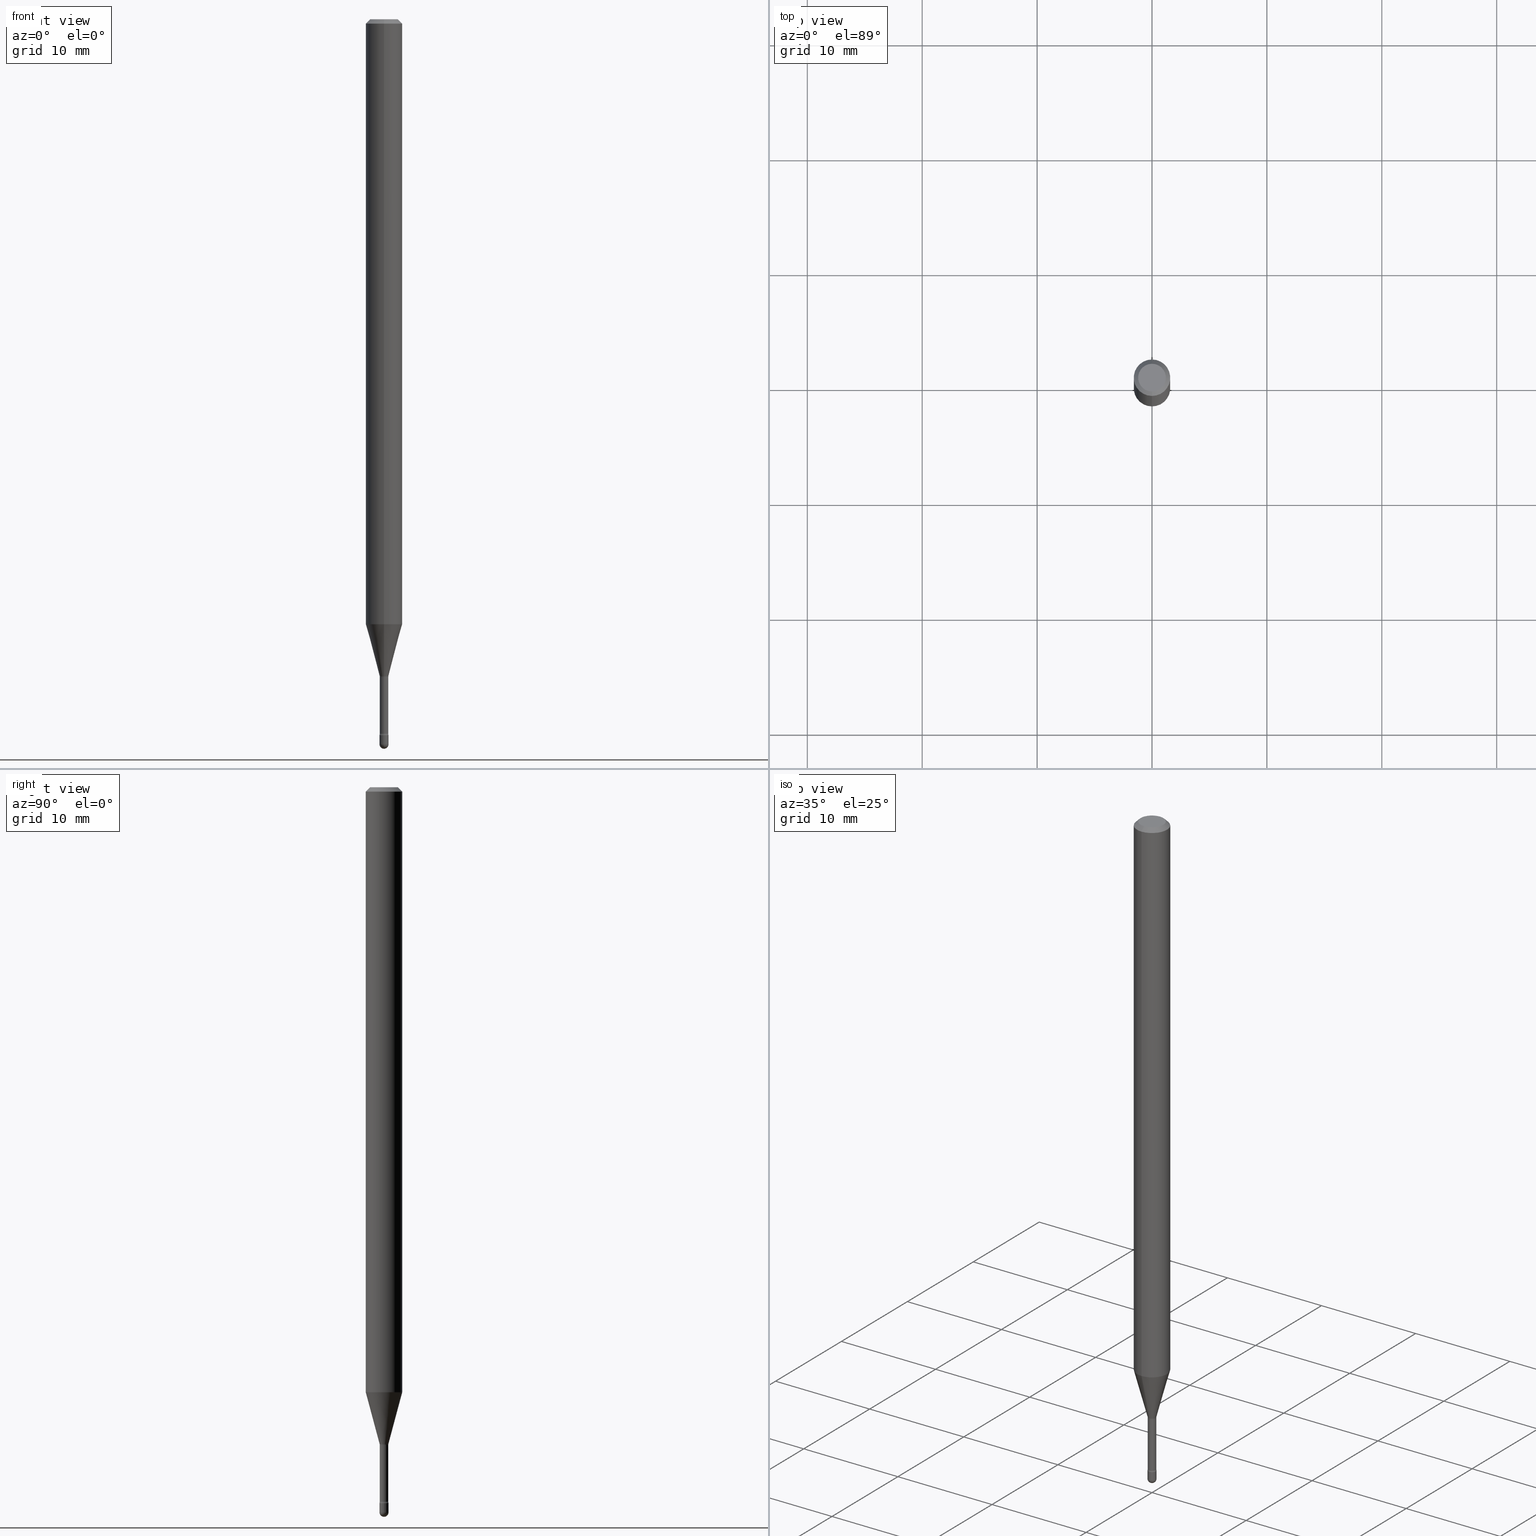
[diagram: canonical four-view strip — front | top / right | iso, engineering-drawing reading convention]
A machine part, canonical four-view strip (front | top / right | iso — engineering-drawing reading convention). The complete STEP part file that produces these views, byte-faithful:
ISO-10303-21;
HEADER;
FILE_DESCRIPTION (( 'STEP AP203' ),
    '1' );
FILE_NAME ('09447.STEP',
    '2024-04-09T23:16:05',
    ( '' ),
    ( '' ),
    'SwSTEP 2.0',
    'SolidWorks 2023',
    '' );
FILE_SCHEMA (( 'CONFIG_CONTROL_DESIGN' ));
ENDSEC;

DATA;
#1 = AXIS2_PLACEMENT_3D ( 'NONE', #10, #53, #522 ) ;
#2 = AXIS2_PLACEMENT_3D ( 'NONE', #152, #189, #322 ) ;
#3 = DIRECTION ( 'NONE',  ( -1.000000000000000000, 6.982962677686265922E-15, -4.883557194083112340E-29 ) ) ;
#4 = ORIENTED_EDGE ( 'NONE', *, *, #555, .F. ) ;
#5 = DIRECTION ( 'NONE',  ( 1.000000000000000000, -6.982962677686238312E-15, 0.000000000000000000 ) ) ;
#6 = CARTESIAN_POINT ( 'NONE',  ( -1.101341240427545269E-16, -0.01550000000000864402, -2.484500000000000153 ) ) ;
#7 = ORIENTED_EDGE ( 'NONE', *, *, #239, .F. ) ;
#8 = FACE_OUTER_BOUND ( 'NONE', #56, .T. ) ;
#9 = AXIS2_PLACEMENT_3D ( 'NONE', #379, #553, #506 ) ;
#10 = CARTESIAN_POINT ( 'NONE',  ( 5.502542296040505557E-29, -7.856139838675041771E-15, -2.250092501787273491 ) ) ;
#11 = ORIENTED_EDGE ( 'NONE', *, *, #186, .T. ) ;
#12 = DIRECTION ( 'NONE',  ( -2.445473815707476510E-29, 3.491474164922030519E-15, 1.000000000000000000 ) ) ;
#13 = ORIENTED_EDGE ( 'NONE', *, *, #145, .F. ) ;
#14 = LINE ( 'NONE', #540, #310 ) ;
#15 = APPROVAL_PERSON_ORGANIZATION ( #368, #61, #504 ) ;
#16 = ORIENTED_EDGE ( 'NONE', *, *, #220, .F. ) ;
#17 = AXIS2_PLACEMENT_3D ( 'NONE', #541, #373, #159 ) ;
#18 =( NAMED_UNIT ( * ) SI_UNIT ( $, .STERADIAN. ) SOLID_ANGLE_UNIT ( ) );
#19 = CALENDAR_DATE ( 2024, 9, 4 ) ;
#20 = DIRECTION ( 'NONE',  ( 4.937700262164548042E-15, 0.7071067811865451302, -0.7071067811865499042 ) ) ;
#21 = CIRCLE ( 'NONE', #228, 0.06250000000000000000 ) ;
#22 = ADVANCED_FACE ( 'NONE', ( #188 ), #435, .T. ) ;
#23 = ORIENTED_EDGE ( 'NONE', *, *, #103, .F. ) ;
#24 = DIRECTION ( 'NONE',  ( -6.982962677686265133E-15, -1.000000000000000000, 0.000000000000000000 ) ) ;
#25 = FACE_OUTER_BOUND ( 'NONE', #420, .T. ) ;
#26 = EDGE_LOOP ( 'NONE', ( #107, #458, #72, #165, #261 ) ) ;
#27 = PERSON_AND_ORGANIZATION ( #557, #564 ) ;
#28 = CARTESIAN_POINT ( 'NONE',  ( -1.169113584055446105E-44, 1.669184350826100908E-30, 4.780733988912460139E-16 ) ) ;
#29 = PERSON_AND_ORGANIZATION_ROLE ( 'creator' ) ;
#30 = DIRECTION ( 'NONE',  ( 1.000000000000000000, -7.105427357601001070E-15, 4.926315420686887018E-29 ) ) ;
#31 = CIRCLE ( 'NONE', #385, 0.01455000000000002472 ) ;
#32 = ORIENTED_EDGE ( 'NONE', *, *, #527, .F. ) ;
#33 = APPROVAL_DATE_TIME ( #552, #277 ) ;
#34 = ADVANCED_FACE ( 'NONE', ( #25 ), #548, .T. ) ;
#35 = DIRECTION ( 'NONE',  ( 1.000000000000000000, -6.982962677686301420E-15, 0.000000000000000000 ) ) ;
#36 = CYLINDRICAL_SURFACE ( 'NONE', #483, 0.01455000000000001084 ) ;
#37 = AXIS2_PLACEMENT_3D ( 'NONE', #550, #337, #505 ) ;
#38 = CARTESIAN_POINT ( 'NONE',  ( 2.099653784171646764E-16, 0.02954999999999212770, -2.253974787463811413 ) ) ;
#39 = LINE ( 'NONE', #389, #274 ) ;
#40 = CIRCLE ( 'NONE', #358, 0.01549999999999999989 ) ;
#41 = CARTESIAN_POINT ( 'NONE',  ( -4.287811248607203282E-16, -0.06250000000000005551, -0.01499999999999986587 ) ) ;
#42 = CARTESIAN_POINT ( 'NONE',  ( 5.502542296040505557E-29, -7.856139838675041771E-15, -2.250092501787273491 ) ) ;
#43 = CC_DESIGN_PERSON_AND_ORGANIZATION_ASSIGNMENT ( #198, #323, ( #167 ) ) ;
#44 = DIRECTION ( 'NONE',  ( -2.445473815707476510E-29, 3.491474164922030519E-15, 1.000000000000000000 ) ) ;
#45 = AXIS2_PLACEMENT_3D ( 'NONE', #195, #163, #236 ) ;
#46 = DIRECTION ( 'NONE',  ( -6.982962677686265922E-15, -1.000000000000000000, 3.491474164922031308E-15 ) ) ;
#47 = ORIENTED_EDGE ( 'NONE', *, *, #517, .T. ) ;
#48 = AXIS2_PLACEMENT_3D ( 'NONE', #259, #101, #266 ) ;
#49 = EDGE_CURVE ( 'NONE', #122, #248, #370, .T. ) ;
#50 = CARTESIAN_POINT ( 'NONE',  ( 5.512025032670523361E-29, -7.869710908652842186E-15, -2.253974787463811413 ) ) ;
#51 = EDGE_LOOP ( 'NONE', ( #405, #47, #74, #496 ) ) ;
#52 = CARTESIAN_POINT ( 'NONE',  ( 6.075767248966972494E-29, -8.674585386355795965E-15, -2.484500000000000153 ) ) ;
#53 = DIRECTION ( 'NONE',  ( -2.445473815707476510E-29, 3.491474164922030519E-15, 1.000000000000000000 ) ) ;
#54 = ORIENTED_EDGE ( 'NONE', *, *, #399, .T. ) ;
#55 = DIRECTION ( 'NONE',  ( -2.445473815707476510E-29, 3.491474164922030519E-15, 1.000000000000000000 ) ) ;
#56 = EDGE_LOOP ( 'NONE', ( #140, #125, #76, #478 ) ) ;
#57 = EDGE_CURVE ( 'NONE', #523, #296, #529, .T. ) ;
#58 = CONICAL_SURFACE ( 'NONE', #1, 0.01506111260566397880, 0.2617993877991499074 ) ;
#59 = ORIENTED_EDGE ( 'NONE', *, *, #232, .F. ) ;
#60 = LINE ( 'NONE', #487, #284 ) ;
#61 = APPROVAL ( #328, 'UNSPECIFIED' ) ;
#62 = DATE_AND_TIME ( #286, #388 ) ;
#63 = ORIENTED_EDGE ( 'NONE', *, *, #291, .F. ) ;
#64 = DIRECTION ( 'NONE',  ( -2.445473815707476510E-29, 3.491474164922030519E-15, 1.000000000000000000 ) ) ;
#65 = ADVANCED_FACE ( 'NONE', ( #329 ), #498, .T. ) ;
#66 = ORIENTED_EDGE ( 'NONE', *, *, #161, .T. ) ;
#67 = DIRECTION ( 'NONE',  ( 0.000000000000000000, 0.000000000000000000, 1.000000000000000000 ) ) ;
#68 = AXIS2_PLACEMENT_3D ( 'NONE', #210, #347, #300 ) ;
#69 = ORIENTED_EDGE ( 'NONE', *, *, #510, .F. ) ;
#70 = PERSON_AND_ORGANIZATION_ROLE ( 'design_supplier' ) ;
#71 = VERTEX_POINT ( 'NONE', #282 ) ;
#72 = ORIENTED_EDGE ( 'NONE', *, *, #281, .F. ) ;
#73 = APPROVAL_ROLE ( '' ) ;
#74 = ORIENTED_EDGE ( 'NONE', *, *, #510, .T. ) ;
#75 = ADVANCED_FACE ( 'NONE', ( #454 ), #558, .T. ) ;
#76 = ORIENTED_EDGE ( 'NONE', *, *, #476, .F. ) ;
#77 = DIRECTION ( 'NONE',  ( -2.445468806185136597E-29, 3.491481338843145583E-15, 1.000000000000000000 ) ) ;
#78 = CIRCLE ( 'NONE', #427, 0.01454999999999999870 ) ;
#79 = ORIENTED_EDGE ( 'NONE', *, *, #383, .F. ) ;
#80 = FACE_OUTER_BOUND ( 'NONE', #276, .T. ) ;
#81 = ORIENTED_EDGE ( 'NONE', *, *, #272, .F. ) ;
#82 = CC_DESIGN_SECURITY_CLASSIFICATION ( #486, ( #469 ) ) ;
#83 = DIRECTION ( 'NONE',  ( -2.445473815707476510E-29, 3.491474164922030519E-15, 1.000000000000000000 ) ) ;
#84 = EDGE_CURVE ( 'NONE', #424, #226, #187, .T. ) ;
#85 = LINE ( 'NONE', #41, #271 ) ;
#86 = DIRECTION ( 'NONE',  ( -2.445473815707476510E-29, 3.491474164922030519E-15, 1.000000000000000000 ) ) ;
#87 = CARTESIAN_POINT ( 'NONE',  ( 3.668210723561235154E-31, -5.237211247383074400E-17, -0.01500000000000008271 ) ) ;
#88 = CIRCLE ( 'NONE', #160, 0.01500000000000001159 ) ;
#89 = CC_DESIGN_PERSON_AND_ORGANIZATION_ASSIGNMENT ( #233, #70, ( #469 ) ) ;
#90 = CARTESIAN_POINT ( 'NONE',  ( -1.016021069602754739E-16, -0.01455000000000856997, -2.447746667724196357 ) ) ;
#91 = TOROIDAL_SURFACE ( 'NONE', #303, 0.02955000000000003804, 0.01500000000000001506 ) ;
#92 = CYLINDRICAL_SURFACE ( 'NONE', #351, 0.01549999999999999989 ) ;
#93 = LOCAL_TIME ( 19, 16, 5.000000000000000000, #283 ) ;
#94 = APPROVAL_PERSON_ORGANIZATION ( #330, #130, #112 ) ;
#95 = DIRECTION ( 'NONE',  ( -2.445473815707476510E-29, 3.491474164922030519E-15, 1.000000000000000000 ) ) ;
#96 = EDGE_CURVE ( 'NONE', #122, #438, #88, .T. ) ;
#97 = DIRECTION ( 'NONE',  ( -6.982962677686266711E-15, -1.000000000000000000, 0.000000000000000000 ) ) ;
#98 = VERTEX_POINT ( 'NONE', #90 ) ;
#99 = CIRCLE ( 'NONE', #345, 0.01506111260566397880 ) ;
#100 = AXIS2_PLACEMENT_3D ( 'NONE', #528, #3, #97 ) ;
#101 = DIRECTION ( 'NONE',  ( -2.445473815707476510E-29, 3.491474164922030519E-15, 1.000000000000000000 ) ) ;
#102 = CARTESIAN_POINT ( 'NONE',  ( 6.114334769336955252E-29, -8.727754245838525120E-15, -2.500000000000000000 ) ) ;
#103 = EDGE_CURVE ( 'NONE', #226, #424, #453, .T. ) ;
#104 = CARTESIAN_POINT ( 'NONE',  ( 5.512036324007575479E-29, -7.869694738815522416E-15, -2.253974787463811413 ) ) ;
#105 = EDGE_LOOP ( 'NONE', ( #395, #109, #150, #59 ) ) ;
#106 = AXIS2_PLACEMENT_3D ( 'NONE', #535, #149, #316 ) ;
#107 = ORIENTED_EDGE ( 'NONE', *, *, #57, .T. ) ;
#108 = UNCERTAINTY_MEASURE_WITH_UNIT (LENGTH_MEASURE( 1.000000000000000082E-05 ), #546, 'distance_accuracy_value', 'NONE');
#109 = ORIENTED_EDGE ( 'NONE', *, *, #96, .T. ) ;
#110 = CC_DESIGN_PERSON_AND_ORGANIZATION_ASSIGNMENT ( #331, #500, ( #486 ) ) ;
#111 = DIRECTION ( 'NONE',  ( -2.445473815707476510E-29, 3.491474164922030519E-15, 1.000000000000000000 ) ) ;
#112 = APPROVAL_ROLE ( '' ) ;
#113 = SECURITY_CLASSIFICATION_LEVEL ( 'unclassified' ) ;
#114 = AXIS2_PLACEMENT_3D ( 'NONE', #213, #348, #518 ) ;
#115 = ORIENTED_EDGE ( 'NONE', *, *, #103, .T. ) ;
#116 = VERTEX_POINT ( 'NONE', #253 ) ;
#117 = APPROVAL_DATE_TIME ( #336, #130 ) ;
#118 = EDGE_CURVE ( 'NONE', #438, #411, #549, .T. ) ;
#119 = CARTESIAN_POINT ( 'NONE',  ( 2.023589285005646150E-45, -2.889068848000358283E-31, -8.274737283279840754E-17 ) ) ;
#120 = FACE_OUTER_BOUND ( 'NONE', #51, .T. ) ;
#121 = CC_DESIGN_APPROVAL ( #130, ( #167 ) ) ;
#122 = VERTEX_POINT ( 'NONE', #475 ) ;
#123 = LINE ( 'NONE', #247, #134 ) ;
#124 = PRODUCT_RELATED_PRODUCT_CATEGORY ( 'detail', '', ( #131 ) ) ;
#125 = ORIENTED_EDGE ( 'NONE', *, *, #457, .T. ) ;
#126 = AXIS2_PLACEMENT_3D ( 'NONE', #28, #111, #244 ) ;
#127 = LINE ( 'NONE', #421, #245 ) ;
#128 = CIRCLE ( 'NONE', #419, 0.01549999999999999989 ) ;
#129 = ORIENTED_EDGE ( 'NONE', *, *, #326, .T. ) ;
#130 = APPROVAL ( #499, 'UNSPECIFIED' ) ;
#131 = PRODUCT ( '09447', '09447', '', ( #327 ) ) ;
#132 = CARTESIAN_POINT ( 'NONE',  ( 6.075767248966972494E-29, -8.674585386355795965E-15, -2.484500000000000153 ) ) ;
#133 = DIRECTION ( 'NONE',  ( -2.445473815707476510E-29, 3.491474164922030519E-15, 1.000000000000000000 ) ) ;
#134 = VECTOR ( 'NONE', #251, 39.37007874015748854 ) ;
#135 = CARTESIAN_POINT ( 'NONE',  ( 1.033839680531544719E-16, 0.01454999999999212652, -2.253974787463811413 ) ) ;
#136 = CIRCLE ( 'NONE', #162, 0.01455000000000002472 ) ;
#137 = DIRECTION ( 'NONE',  ( -6.982962677686265133E-15, -1.000000000000000000, 0.000000000000000000 ) ) ;
#138 = ADVANCED_FACE ( 'NONE', ( #471 ), #255, .T. ) ;
#139 = CARTESIAN_POINT ( 'NONE',  ( 6.075767248966972494E-29, -8.674585386355795965E-15, -2.484500000000000153 ) ) ;
#140 = ORIENTED_EDGE ( 'NONE', *, *, #415, .T. ) ;
#141 = MANIFOLD_SOLID_BREP ( 'Body-Move/Copy2[2]', #309 ) ;
#142 = DIRECTION ( 'NONE',  ( -6.982962677686265922E-15, -1.000000000000000000, 3.491474164922030519E-15 ) ) ;
#143 = AXIS2_PLACEMENT_3D ( 'NONE', #119, #288, #459 ) ;
#144 = CIRCLE ( 'NONE', #493, 0.01549999999999999989 ) ;
#145 = EDGE_CURVE ( 'NONE', #404, #464, #492, .T. ) ;
#146 = FACE_OUTER_BOUND ( 'NONE', #240, .T. ) ;
#147 = EDGE_LOOP ( 'NONE', ( #54, #246, #460, #69 ) ) ;
#148 = DIRECTION ( 'NONE',  ( -2.445473815707476510E-29, 3.491474164922030519E-15, 1.000000000000000000 ) ) ;
#149 = DIRECTION ( 'NONE',  ( 1.000000000000000000, -6.982962677686265922E-15, 4.883557194083112340E-29 ) ) ;
#150 = ORIENTED_EDGE ( 'NONE', *, *, #118, .T. ) ;
#151 = EDGE_LOOP ( 'NONE', ( #206, #285, #223, #13 ) ) ;
#152 = CARTESIAN_POINT ( 'NONE',  ( 5.998747269930439159E-29, -8.564586126553740940E-15, -2.452999999999999847 ) ) ;
#153 = AXIS2_PLACEMENT_3D ( 'NONE', #357, #314, #531 ) ;
#154 = ORIENTED_EDGE ( 'NONE', *, *, #545, .T. ) ;
#155 = PERSON_AND_ORGANIZATION ( #557, #564 ) ;
#156 = ORIENTED_EDGE ( 'NONE', *, *, #257, .F. ) ;
#157 = APPLICATION_PROTOCOL_DEFINITION ( 'international standard', 'config_control_design', 1994, #298 ) ;
#158 = DATE_AND_TIME ( #547, #172 ) ;
#159 = DIRECTION ( 'NONE',  ( 1.000000000000000000, -6.982962677686266711E-15, 4.876176775795935232E-29 ) ) ;
#160 = AXIS2_PLACEMENT_3D ( 'NONE', #418, #30, #364 ) ;
#161 = EDGE_CURVE ( 'NONE', #116, #366, #123, .T. ) ;
#162 = AXIS2_PLACEMENT_3D ( 'NONE', #391, #566, #137 ) ;
#163 = DIRECTION ( 'NONE',  ( -2.445468806185136597E-29, 3.491481338843145583E-15, 1.000000000000000000 ) ) ;
#164 = CARTESIAN_POINT ( 'NONE',  ( -1.016021069602800345E-16, -0.01455000000000786740, -2.253974787463811413 ) ) ;
#165 = ORIENTED_EDGE ( 'NONE', *, *, #200, .F. ) ;
#166 = DIRECTION ( 'NONE',  ( -2.445473815707476510E-29, 3.491474164922030519E-15, 1.000000000000000000 ) ) ;
#167 = PRODUCT_DEFINITION ( 'UNKNOWN', '', #469, #497 ) ;
#168 = DIRECTION ( 'NONE',  ( -2.445468806185136877E-29, 3.491481338843145188E-15, 1.000000000000000000 ) ) ;
#169 = AXIS2_PLACEMENT_3D ( 'NONE', #87, #83, #344 ) ;
#170 = DIRECTION ( 'NONE',  ( -2.445473815707476230E-29, 3.491474164922030519E-15, 1.000000000000000000 ) ) ;
#171 = DIRECTION ( 'NONE',  ( 7.105427357601001859E-15, 1.000000000000000000, 0.000000000000000000 ) ) ;
#172 = LOCAL_TIME ( 19, 16, 5.000000000000000000, #416 ) ;
#173 = ADVANCED_FACE ( 'NONE', ( #80 ), #390, .F. ) ;
#174 = DIRECTION ( 'NONE',  ( 1.000000000000000000, -6.982962677686301420E-15, 0.000000000000000000 ) ) ;
#175 = ORIENTED_EDGE ( 'NONE', *, *, #415, .F. ) ;
#176 = TOROIDAL_SURFACE ( 'NONE', #403, 0.02954999999999999988, 0.01500000000000002720 ) ;
#177 = ORIENTED_EDGE ( 'NONE', *, *, #281, .T. ) ;
#178 = DIRECTION ( 'NONE',  ( -2.445473815707476510E-29, 3.491474164922030519E-15, 1.000000000000000000 ) ) ;
#179 = EDGE_CURVE ( 'NONE', #116, #248, #519, .T. ) ;
#180 = PLANE ( 'NONE',  #153 ) ;
#181 = ORIENTED_EDGE ( 'NONE', *, *, #393, .T. ) ;
#182 = AXIS2_PLACEMENT_3D ( 'NONE', #503, #554, #295 ) ;
#183 = FACE_OUTER_BOUND ( 'NONE', #434, .T. ) ;
#184 = EDGE_LOOP ( 'NONE', ( #79, #451, #32, #359 ) ) ;
#185 = DIRECTION ( 'NONE',  ( -6.982962677686265922E-15, -1.000000000000000000, 3.491474164922030519E-15 ) ) ;
#186 = EDGE_CURVE ( 'NONE', #424, #464, #85, .T. ) ;
#187 = CIRCLE ( 'NONE', #143, 0.04749999999999999362 ) ;
#188 = FACE_OUTER_BOUND ( 'NONE', #338, .T. ) ;
#189 = DIRECTION ( 'NONE',  ( -2.445473815707476510E-29, 3.491474164922030519E-15, 1.000000000000000000 ) ) ;
#190 = APPLICATION_CONTEXT ( 'configuration controlled 3d designs of mechanical parts and assemblies' ) ;
#191 = DATE_AND_TIME ( #19, #214 ) ;
#192 = CIRCLE ( 'NONE', #511, 0.01506111260566397880 ) ;
#193 = CARTESIAN_POINT ( 'NONE',  ( 4.364351673553919652E-16, 0.06249999999999995143, -0.01500000000000030129 ) ) ;
#194 = CC_DESIGN_PERSON_AND_ORGANIZATION_ASSIGNMENT ( #287, #29, ( #469 ) ) ;
#195 = CARTESIAN_POINT ( 'NONE',  ( 6.075767248966972494E-29, -8.674585386355795965E-15, -2.484500000000000153 ) ) ;
#196 = CARTESIAN_POINT ( 'NONE',  ( 6.075767248966972494E-29, -8.674585386355795965E-15, -2.484500000000000153 ) ) ;
#197 = PERSON_AND_ORGANIZATION_ROLE ( 'design_owner' ) ;
#198 = PERSON_AND_ORGANIZATION ( #557, #564 ) ;
#199 = EDGE_LOOP ( 'NONE', ( #252, #11, #543, #4 ) ) ;
#200 = EDGE_CURVE ( 'NONE', #537, #551, #559, .T. ) ;
#201 = ORIENTED_EDGE ( 'NONE', *, *, #96, .F. ) ;
#202 = COORDINATED_UNIVERSAL_TIME_OFFSET ( 5, 0, .BEHIND. ) ;
#203 = ORIENTED_EDGE ( 'NONE', *, *, #407, .T. ) ;
#204 = VECTOR ( 'NONE', #20, 39.37007874015748143 ) ;
#205 = DIRECTION ( 'NONE',  ( 1.000000000000000000, -6.982962677686266711E-15, 4.876176775795935232E-29 ) ) ;
#206 = ORIENTED_EDGE ( 'NONE', *, *, #457, .F. ) ;
#207 = CARTESIAN_POINT ( 'NONE',  ( -4.364351673553912750E-16, -0.06250000000000005551, -0.01499999999999986587 ) ) ;
#208 = CARTESIAN_POINT ( 'NONE',  ( 2.023589285005646150E-45, -2.889068848000358283E-31, -8.274737283279840754E-17 ) ) ;
#209 = ADVANCED_FACE ( 'NONE', ( #346 ), #556, .T. ) ;
#210 = CARTESIAN_POINT ( 'NONE',  ( -2.063465471255695831E-16, -0.02955000000000858329, -2.447746667724196357 ) ) ;
#211 = CARTESIAN_POINT ( 'NONE',  ( -1.169113584055446105E-44, 1.669184350826100908E-30, 4.780733988912460139E-16 ) ) ;
#212 = DIRECTION ( 'NONE',  ( -6.982962677686265922E-15, -1.000000000000000000, 4.370956789862821150E-15 ) ) ;
#213 = CARTESIAN_POINT ( 'NONE',  ( 5.069585003217296339E-29, -7.237994106466703788E-15, -2.073048163777072794 ) ) ;
#214 = LOCAL_TIME ( 19, 16, 5.000000000000000000, #235 ) ;
#215 = DIRECTION ( 'NONE',  ( -6.982962677686266711E-15, -1.000000000000000000, 0.000000000000000000 ) ) ;
#216 = CC_DESIGN_DATE_AND_TIME_ASSIGNMENT ( #62, #413, ( #486 ) ) ;
#217 = VERTEX_POINT ( 'NONE', #164 ) ;
#218 = CIRCLE ( 'NONE', #473, 0.01549999999999993744 ) ;
#219 = ADVANCED_BREP_SHAPE_REPRESENTATION ( '09447', ( #325, #141, #513 ), #534 ) ;
#220 = EDGE_CURVE ( 'NONE', #296, #264, #127, .T. ) ;
#221 = DIRECTION ( 'NONE',  ( 6.982962677686265922E-15, 1.000000000000000000, 0.000000000000000000 ) ) ;
#222 = CARTESIAN_POINT ( 'NONE',  ( 5.512025032670523361E-29, -7.869710908652842186E-15, -2.253974787463811413 ) ) ;
#223 = ORIENTED_EDGE ( 'NONE', *, *, #440, .T. ) ;
#224 = DIRECTION ( 'NONE',  ( -6.982962677686265922E-15, -1.000000000000000000, 0.000000000000000000 ) ) ;
#225 = AXIS2_PLACEMENT_3D ( 'NONE', #132, #468, #426 ) ;
#226 = VERTEX_POINT ( 'NONE', #340 ) ;
#227 = CARTESIAN_POINT ( 'NONE',  ( 5.985888121363136129E-29, -8.546261812574526278E-15, -2.447746667724196357 ) ) ;
#228 = AXIS2_PLACEMENT_3D ( 'NONE', #509, #516, #212 ) ;
#229 = ORIENTED_EDGE ( 'NONE', *, *, #407, .F. ) ;
#230 = DIRECTION ( 'NONE',  ( 1.000000000000000000, -6.982962677686301420E-15, 0.000000000000000000 ) ) ;
#231 = CARTESIAN_POINT ( 'NONE',  ( 0.000000000000000000, 0.000000000000000000, 0.000000000000000000 ) ) ;
#232 = EDGE_CURVE ( 'NONE', #98, #411, #461, .T. ) ;
#233 = PERSON_AND_ORGANIZATION ( #557, #564 ) ;
#234 = ORIENTED_EDGE ( 'NONE', *, *, #186, .F. ) ;
#235 = COORDINATED_UNIVERSAL_TIME_OFFSET ( 5, 0, .BEHIND. ) ;
#236 = DIRECTION ( 'NONE',  ( 1.000000000000000000, -6.982962677686301420E-15, 0.000000000000000000 ) ) ;
#237 = AXIS2_PLACEMENT_3D ( 'NONE', #396, #488, #5 ) ;
#238 = APPROVAL_PERSON_ORGANIZATION ( #27, #277, #73 ) ;
#239 = EDGE_CURVE ( 'NONE', #366, #71, #560, .T. ) ;
#240 = EDGE_LOOP ( 'NONE', ( #311, #307, #129, #318 ) ) ;
#241 = ORIENTED_EDGE ( 'NONE', *, *, #145, .T. ) ;
#242 = DIRECTION ( 'NONE',  ( 6.982962677686265922E-15, 1.000000000000000000, -3.483106191921935554E-15 ) ) ;
#243 = COORDINATED_UNIVERSAL_TIME_OFFSET ( 5, 0, .BEHIND. ) ;
#244 = DIRECTION ( 'NONE',  ( -6.982962677686265922E-15, -1.000000000000000000, 3.491474164922031308E-15 ) ) ;
#245 = VECTOR ( 'NONE', #561, 39.37007874015748143 ) ;
#246 = ORIENTED_EDGE ( 'NONE', *, *, #49, .T. ) ;
#247 = CARTESIAN_POINT ( 'NONE',  ( 1.070156415442491432E-16, 0.01506111260565612224, -2.250092501787273491 ) ) ;
#248 = VERTEX_POINT ( 'NONE', #135 ) ;
#249 = PRODUCT_DEFINITION_SHAPE ( 'NONE', 'NONE',  #167 ) ;
#250 = ADVANCED_FACE ( 'NONE', ( #302 ), #92, .T. ) ;
#251 = DIRECTION ( 'NONE',  ( 1.839019923739597554E-15, 0.2588190451025245697, 0.9659258262890670910 ) ) ;
#252 = ORIENTED_EDGE ( 'NONE', *, *, #84, .F. ) ;
#253 = CARTESIAN_POINT ( 'NONE',  ( 2.755524256971814314E-16, 0.01506111260565612397, -2.250092501787273491 ) ) ;
#254 = AXIS2_PLACEMENT_3D ( 'NONE', #334, #375, #242 ) ;
#255 = SPHERICAL_SURFACE ( 'NONE', #225, 0.01549999999999993744 ) ;
#256 = TOROIDAL_SURFACE ( 'NONE', #335, 0.02954999999999999988, 0.01500000000000002720 ) ;
#257 = EDGE_CURVE ( 'NONE', #264, #551, #502, .T. ) ;
#258 = CARTESIAN_POINT ( 'NONE',  ( 0.000000000000000000, 0.000000000000000000, 0.000000000000000000 ) ) ;
#259 = CARTESIAN_POINT ( 'NONE',  ( 5.985888121363136129E-29, -8.546261812574526278E-15, -2.447746667724196357 ) ) ;
#260 = DIRECTION ( 'NONE',  ( -2.445473815707476510E-29, 3.491474164922030519E-15, 1.000000000000000000 ) ) ;
#261 = ORIENTED_EDGE ( 'NONE', *, *, #299, .T. ) ;
#262 = CC_DESIGN_PERSON_AND_ORGANIZATION_ASSIGNMENT ( #155, #197, ( #131 ) ) ;
#263 = DIRECTION ( 'NONE',  ( -6.982962677686266711E-15, -1.000000000000000000, 0.000000000000000000 ) ) ;
#264 = VERTEX_POINT ( 'NONE', #290 ) ;
#265 = CIRCLE ( 'NONE', #237, 0.01549999999999999989 ) ;
#266 = DIRECTION ( 'NONE',  ( -6.982962677686265922E-15, -1.000000000000000000, 3.491474164922030519E-15 ) ) ;
#267 = DIRECTION ( 'NONE',  ( -7.105427357601001070E-15, -1.000000000000000000, 0.000000000000000000 ) ) ;
#268 = EDGE_LOOP ( 'NONE', ( #203, #66, #175, #278 ) ) ;
#269 = LINE ( 'NONE', #536, #445 ) ;
#270 = DIRECTION ( 'NONE',  ( -2.445473815707476510E-29, 3.491474164922030519E-15, 1.000000000000000000 ) ) ;
#271 = VECTOR ( 'NONE', #423, 39.37007874015748143 ) ;
#272 = EDGE_CURVE ( 'NONE', #362, #537, #128, .T. ) ;
#273 = DIRECTION ( 'NONE',  ( -1.000000000000000000, 6.982962677686265922E-15, -4.883557194083112901E-29 ) ) ;
#274 = VECTOR ( 'NONE', #525, 39.37007874015748143 ) ;
#275 = CALENDAR_DATE ( 2024, 9, 4 ) ;
#276 = EDGE_LOOP ( 'NONE', ( #289, #494 ) ) ;
#277 = APPROVAL ( #374, 'UNSPECIFIED' ) ;
#278 = ORIENTED_EDGE ( 'NONE', *, *, #545, .F. ) ;
#279 = DIRECTION ( 'NONE',  ( -6.982962677686266711E-15, -1.000000000000000000, 3.491474164922029336E-15 ) ) ;
#280 = APPLICATION_PROTOCOL_DEFINITION ( 'international standard', 'config_control_design', 1994, #190 ) ;
#281 = EDGE_CURVE ( 'NONE', #551, #264, #265, .T. ) ;
#282 = CARTESIAN_POINT ( 'NONE',  ( -4.364351673553409851E-16, -0.06250000000000724421, -2.073048163777072794 ) ) ;
#283 = COORDINATED_UNIVERSAL_TIME_OFFSET ( 5, 0, .BEHIND. ) ;
#284 = VECTOR ( 'NONE', #64, 39.37007874015748143 ) ;
#285 = ORIENTED_EDGE ( 'NONE', *, *, #239, .T. ) ;
#286 = CALENDAR_DATE ( 2024, 9, 4 ) ;
#287 = PERSON_AND_ORGANIZATION ( #557, #564 ) ;
#288 = DIRECTION ( 'NONE',  ( -2.445473815707476510E-29, 3.491474164922030519E-15, 1.000000000000000000 ) ) ;
#289 = ORIENTED_EDGE ( 'NONE', *, *, #563, .F. ) ;
#290 = CARTESIAN_POINT ( 'NONE',  ( -0.01549999999999999989, -8.509460431226201399E-15, -2.452999999999999847 ) ) ;
#291 = EDGE_CURVE ( 'NONE', #320, #362, #218, .T. ) ;
#292 = ORIENTED_EDGE ( 'NONE', *, *, #200, .T. ) ;
#293 = CONICAL_SURFACE ( 'NONE', #367, 0.01506111260566397880, 0.2617993877991499074 ) ;
#294 = DIRECTION ( 'NONE',  ( -6.982962677686265922E-15, -1.000000000000000000, 3.483106191921935554E-15 ) ) ;
#295 = DIRECTION ( 'NONE',  ( 1.000000000000000000, -6.982962677686265922E-15, 4.876176775795935793E-29 ) ) ;
#296 = VERTEX_POINT ( 'NONE', #524 ) ;
#297 = DIRECTION ( 'NONE',  ( 1.000000000000000000, -7.105427357601001070E-15, 4.926315420686887018E-29 ) ) ;
#298 = APPLICATION_CONTEXT ( 'configuration controlled 3d designs of mechanical parts and assemblies' ) ;
#299 = EDGE_CURVE ( 'NONE', #537, #523, #144, .T. ) ;
#300 = DIRECTION ( 'NONE',  ( -6.982962677686268288E-15, -1.000000000000000000, 0.000000000000000000 ) ) ;
#301 = AXIS2_PLACEMENT_3D ( 'NONE', #565, #512, #294 ) ;
#302 = FACE_OUTER_BOUND ( 'NONE', #26, .T. ) ;
#303 = AXIS2_PLACEMENT_3D ( 'NONE', #227, #12, #185 ) ;
#304 = CARTESIAN_POINT ( 'NONE',  ( 4.440892098501135963E-16, 0.06249999999999995143, -0.01500000000000030129 ) ) ;
#305 = DIMENSIONAL_EXPONENTS ( 1.000000000000000000, 0.000000000000000000, 0.000000000000000000, 0.000000000000000000, 0.000000000000000000, 0.000000000000000000, 0.000000000000000000 ) ;
#306 = DIRECTION ( 'NONE',  ( -2.445468806185136597E-29, 3.491481338843145583E-15, 1.000000000000000000 ) ) ;
#307 = ORIENTED_EDGE ( 'NONE', *, *, #179, .T. ) ;
#308 = EDGE_CURVE ( 'NONE', #443, #217, #394, .T. ) ;
#309 = CLOSED_SHELL ( 'NONE', ( #317, #209, #339, #75, #450, #378, #353, #65, #22, #365, #173, #538, #495, #360 ) ) ;
#310 = VECTOR ( 'NONE', #148, 39.37007874015748143 ) ;
#311 = ORIENTED_EDGE ( 'NONE', *, *, #422, .F. ) ;
#312 = CARTESIAN_POINT ( 'NONE',  ( 0.01549999999999999989, -8.727830476773153796E-15, -2.484500000000000153 ) ) ;
#313 = CARTESIAN_POINT ( 'NONE',  ( -1.051711872097266853E-16, -0.01506111260567183537, -2.250092501787273491 ) ) ;
#314 = DIRECTION ( 'NONE',  ( 2.445473815707476230E-29, -3.491474164922030519E-15, -1.000000000000000000 ) ) ;
#315 = DIRECTION ( 'NONE',  ( -2.445473815707476510E-29, 3.491474164922030519E-15, 1.000000000000000000 ) ) ;
#316 = DIRECTION ( 'NONE',  ( 6.982962677686265922E-15, 1.000000000000000000, 0.000000000000000000 ) ) ;
#317 = ADVANCED_FACE ( 'NONE', ( #146 ), #256, .F. ) ;
#318 = ORIENTED_EDGE ( 'NONE', *, *, #308, .F. ) ;
#319 = AXIS2_PLACEMENT_3D ( 'NONE', #211, #166, #386 ) ;
#320 = VERTEX_POINT ( 'NONE', #102 ) ;
#321 = CARTESIAN_POINT ( 'NONE',  ( 1.082359215041976490E-16, 0.01549999999999129678, -2.484500000000000153 ) ) ;
#322 = DIRECTION ( 'NONE',  ( -6.982962677686265922E-15, -1.000000000000000000, 0.000000000000000000 ) ) ;
#323 = PERSON_AND_ORGANIZATION_ROLE ( 'creator' ) ;
#324 = EDGE_LOOP ( 'NONE', ( #177, #384 ) ) ;
#325 = MANIFOLD_SOLID_BREP ( 'Body-Move/Copy2[1]', #481 ) ;
#326 = EDGE_CURVE ( 'NONE', #248, #217, #78, .T. ) ;
#327 = MECHANICAL_CONTEXT ( 'NONE', #190, 'mechanical' ) ;
#328 = APPROVAL_STATUS ( 'not_yet_approved' ) ;
#329 = FACE_OUTER_BOUND ( 'NONE', #151, .T. ) ;
#330 = PERSON_AND_ORGANIZATION ( #557, #564 ) ;
#331 = PERSON_AND_ORGANIZATION ( #557, #564 ) ;
#332 = LOCAL_TIME ( 19, 16, 5.000000000000000000, #243 ) ;
#333 = VECTOR ( 'NONE', #414, 39.37007874015748143 ) ;
#334 = CARTESIAN_POINT ( 'NONE',  ( 3.668210723561235154E-31, -5.237211247383074400E-17, -0.01500000000000008271 ) ) ;
#335 = AXIS2_PLACEMENT_3D ( 'NONE', #50, #491, #142 ) ;
#336 = DATE_AND_TIME ( #275, #93 ) ;
#337 = DIRECTION ( 'NONE',  ( 2.445473815707476510E-29, -3.491474164922030519E-15, -1.000000000000000000 ) ) ;
#338 = EDGE_LOOP ( 'NONE', ( #234, #23, #398, #241 ) ) ;
#339 = ADVANCED_FACE ( 'NONE', ( #355 ), #463, .F. ) ;
#340 = CARTESIAN_POINT ( 'NONE',  ( 3.840629472727447874E-16, 0.04749999999999999362, -2.485923956665948360E-16 ) ) ;
#341 = EDGE_LOOP ( 'NONE', ( #449, #229, #480, #181 ) ) ;
#342 = CARTESIAN_POINT ( 'NONE',  ( 1.082359215041971067E-16, 0.01549999999999143382, -2.452999999999999847 ) ) ;
#343 = AXIS2_PLACEMENT_3D ( 'NONE', #431, #260, #46 ) ;
#344 = DIRECTION ( 'NONE',  ( -6.982962677686265922E-15, -1.000000000000000000, 3.483106191921935554E-15 ) ) ;
#345 = AXIS2_PLACEMENT_3D ( 'NONE', #42, #86, #387 ) ;
#346 = FACE_OUTER_BOUND ( 'NONE', #147, .T. ) ;
#347 = DIRECTION ( 'NONE',  ( -1.000000000000000000, 6.982962677686265922E-15, -4.883557194083112340E-29 ) ) ;
#348 = DIRECTION ( 'NONE',  ( -2.445473815707476510E-29, 3.491474164922030519E-15, 1.000000000000000000 ) ) ;
#349 = CC_DESIGN_APPROVAL ( #61, ( #469 ) ) ;
#350 = CARTESIAN_POINT ( 'NONE',  ( 4.440892098501131033E-16, 0.06249999999999274192, -2.073048163777073238 ) ) ;
#351 = AXIS2_PLACEMENT_3D ( 'NONE', #258, #429, #205 ) ;
#352 = DIRECTION ( 'NONE',  ( -1.000000000000000000, 7.105427357601001070E-15, -4.926315508542082329E-29 ) ) ;
#353 = ADVANCED_FACE ( 'NONE', ( #439 ), #58, .T. ) ;
#354 = ORIENTED_EDGE ( 'NONE', *, *, #232, .T. ) ;
#355 = FACE_OUTER_BOUND ( 'NONE', #105, .T. ) ;
#356 = ORIENTED_EDGE ( 'NONE', *, *, #383, .T. ) ;
#357 = CARTESIAN_POINT ( 'NONE',  ( 3.316907271900976096E-16, 0.04749999999999999362, 3.181799019542745485E-17 ) ) ;
#358 = AXIS2_PLACEMENT_3D ( 'NONE', #196, #544, #230 ) ;
#359 = ORIENTED_EDGE ( 'NONE', *, *, #57, .F. ) ;
#360 = ADVANCED_FACE ( 'NONE', ( #402 ), #176, .F. ) ;
#361 = CARTESIAN_POINT ( 'NONE',  ( 5.502542296040505557E-29, -7.856139838675041771E-15, -2.250092501787273491 ) ) ;
#362 = VERTEX_POINT ( 'NONE', #6 ) ;
#363 =( LENGTH_UNIT ( ) NAMED_UNIT ( * ) SI_UNIT ( $, .METRE. ) );
#364 = DIRECTION ( 'NONE',  ( 7.105427357601003436E-15, 1.000000000000000000, 0.000000000000000000 ) ) ;
#365 = ADVANCED_FACE ( 'NONE', ( #183 ), #180, .F. ) ;
#366 = VERTEX_POINT ( 'NONE', #350 ) ;
#367 = AXIS2_PLACEMENT_3D ( 'NONE', #361, #55, #224 ) ;
#368 = PERSON_AND_ORGANIZATION ( #557, #564 ) ;
#369 = CARTESIAN_POINT ( 'NONE',  ( 0.01549999999999999989, -8.672839645686373673E-15, -2.452999999999999847 ) ) ;
#370 = LINE ( 'NONE', #501, #333 ) ;
#371 = CARTESIAN_POINT ( 'NONE',  ( 5.985900383404751358E-29, -8.546244252633021898E-15, -2.447746667724196357 ) ) ;
#372 = DATE_TIME_ROLE ( 'creation_date' ) ;
#373 = DIRECTION ( 'NONE',  ( -2.445468806185136597E-29, 3.491481338843145583E-15, 1.000000000000000000 ) ) ;
#374 = APPROVAL_STATUS ( 'not_yet_approved' ) ;
#375 = DIRECTION ( 'NONE',  ( 2.445473815707476510E-29, -3.491474164922030519E-15, -1.000000000000000000 ) ) ;
#376 = CIRCLE ( 'NONE', #530, 0.01454999999999999870 ) ;
#377 = CALENDAR_DATE ( 2024, 9, 4 ) ;
#378 = ADVANCED_FACE ( 'NONE', ( #442 ), #293, .T. ) ;
#379 = CARTESIAN_POINT ( 'NONE',  ( 5.998734981572139453E-29, -8.564603724182235719E-15, -2.452999999999999847 ) ) ;
#380 = DIRECTION ( 'NONE',  ( -2.445473815707476510E-29, 3.491474164922030519E-15, 1.000000000000000000 ) ) ;
#381 = CARTESIAN_POINT ( 'NONE',  ( -1.082359215040772121E-16, -0.01550000000000857463, -2.452999999999999847 ) ) ;
#382 = DIRECTION ( 'NONE',  ( -6.982962677686266711E-15, -1.000000000000000000, 3.491474164922030914E-15 ) ) ;
#383 = EDGE_CURVE ( 'NONE', #320, #523, #437, .T. ) ;
#384 = ORIENTED_EDGE ( 'NONE', *, *, #257, .T. ) ;
#385 = AXIS2_PLACEMENT_3D ( 'NONE', #371, #315, #24 ) ;
#386 = DIRECTION ( 'NONE',  ( -6.982962677686266711E-15, -1.000000000000000000, 3.491474164922029336E-15 ) ) ;
#387 = DIRECTION ( 'NONE',  ( -6.982962677686265922E-15, -1.000000000000000000, 0.000000000000000000 ) ) ;
#388 = LOCAL_TIME ( 19, 16, 5.000000000000000000, #202 ) ;
#389 = CARTESIAN_POINT ( 'NONE',  ( 4.440892098500625669E-16, 0.06250000000000000000, 2.598562635836191558E-16 ) ) ;
#390 = PLANE ( 'NONE',  #444 ) ;
#391 = CARTESIAN_POINT ( 'NONE',  ( 5.985900383404751358E-29, -8.546244252633021898E-15, -2.447746667724196357 ) ) ;
#392 = AXIS2_PLACEMENT_3D ( 'NONE', #38, #297, #171 ) ;
#393 = EDGE_CURVE ( 'NONE', #217, #248, #376, .T. ) ;
#394 = CIRCLE ( 'NONE', #100, 0.01500000000000002373 ) ;
#395 = ORIENTED_EDGE ( 'NONE', *, *, #517, .F. ) ;
#396 = CARTESIAN_POINT ( 'NONE',  ( 5.998734981572139453E-29, -8.564603724182235719E-15, -2.452999999999999847 ) ) ;
#397 = DIRECTION ( 'NONE',  ( -6.982962677686265922E-15, -1.000000000000000000, 3.491474164922030519E-15 ) ) ;
#398 = ORIENTED_EDGE ( 'NONE', *, *, #555, .T. ) ;
#399 = EDGE_CURVE ( 'NONE', #98, #122, #136, .T. ) ;
#400 = SPHERICAL_SURFACE ( 'NONE', #455, 0.01549999999999993744 ) ;
#401 = AXIS2_PLACEMENT_3D ( 'NONE', #208, #133, #382 ) ;
#402 = FACE_OUTER_BOUND ( 'NONE', #341, .T. ) ;
#403 = AXIS2_PLACEMENT_3D ( 'NONE', #222, #44, #397 ) ;
#404 = VERTEX_POINT ( 'NONE', #304 ) ;
#405 = ORIENTED_EDGE ( 'NONE', *, *, #49, .F. ) ;
#406 =( NAMED_UNIT ( * ) PLANE_ANGLE_UNIT ( ) SI_UNIT ( $, .RADIAN. ) );
#407 = EDGE_CURVE ( 'NONE', #443, #116, #192, .T. ) ;
#408 = LINE ( 'NONE', #193, #204 ) ;
#409 = ORIENTED_EDGE ( 'NONE', *, *, #84, .T. ) ;
#410 = CIRCLE ( 'NONE', #169, 0.06250000000000000000 ) ;
#411 = VERTEX_POINT ( 'NONE', #381 ) ;
#412 = EDGE_LOOP ( 'NONE', ( #539, #467, #154, #7 ) ) ;
#413 = DATE_TIME_ROLE ( 'classification_date' ) ;
#414 = DIRECTION ( 'NONE',  ( -2.445473815707476510E-29, 3.491474164922030519E-15, 1.000000000000000000 ) ) ;
#415 = EDGE_CURVE ( 'NONE', #71, #366, #21, .T. ) ;
#416 = COORDINATED_UNIVERSAL_TIME_OFFSET ( 5, 0, .BEHIND. ) ;
#417 = VECTOR ( 'NONE', #168, 39.37007874015748143 ) ;
#418 = CARTESIAN_POINT ( 'NONE',  ( 2.099653784171697300E-16, 0.02954999999999149279, -2.447746667724196357 ) ) ;
#419 = AXIS2_PLACEMENT_3D ( 'NONE', #462, #77, #35 ) ;
#420 = EDGE_LOOP ( 'NONE', ( #16, #446, #507, #292, #156 ) ) ;
#421 = CARTESIAN_POINT ( 'NONE',  ( -0.01549999999999999989, 1.101341240428155280E-16, -7.624349389895103058E-31 ) ) ;
#422 = EDGE_CURVE ( 'NONE', #116, #443, #99, .T. ) ;
#423 = DIRECTION ( 'NONE',  ( -4.851104656540964275E-15, -0.7071067811865500152, -0.7071067811865450192 ) ) ;
#424 = VERTEX_POINT ( 'NONE', #562 ) ;
#425 = SHAPE_DEFINITION_REPRESENTATION ( #249, #219 ) ;
#426 = DIRECTION ( 'NONE',  ( 6.982962677686265922E-15, 1.000000000000000000, 0.000000000000000000 ) ) ;
#427 = AXIS2_PLACEMENT_3D ( 'NONE', #436, #178, #263 ) ;
#428 = CARTESIAN_POINT ( 'NONE',  ( 0.01549999999999999989, -1.082359215041371286E-16, 7.558074002483699918E-31 ) ) ;
#429 = DIRECTION ( 'NONE',  ( -2.445468806185136597E-29, 3.491481338843145583E-15, 1.000000000000000000 ) ) ;
#430 = CC_DESIGN_APPROVAL ( #277, ( #486 ) ) ;
#431 = CARTESIAN_POINT ( 'NONE',  ( -1.169113584055446105E-44, 1.669184350826100908E-30, 4.780733988912460139E-16 ) ) ;
#432 = ADVANCED_FACE ( 'NONE', ( #515 ), #400, .T. ) ;
#433 = DIRECTION ( 'NONE',  ( -6.982962677686265922E-15, -1.000000000000000000, 0.000000000000000000 ) ) ;
#434 = EDGE_LOOP ( 'NONE', ( #115, #409 ) ) ;
#435 = CONICAL_SURFACE ( 'NONE', #254, 0.06250000000000000000, 0.7853981633974483900 ) ;
#436 = CARTESIAN_POINT ( 'NONE',  ( 5.512036324007575479E-29, -7.869694738815522416E-15, -2.253974787463811413 ) ) ;
#437 = CIRCLE ( 'NONE', #106, 0.01549999999999993744 ) ;
#438 = VERTEX_POINT ( 'NONE', #447 ) ;
#439 = FACE_OUTER_BOUND ( 'NONE', #412, .T. ) ;
#440 = EDGE_CURVE ( 'NONE', #71, #464, #60, .T. ) ;
#441 = ORIENTED_EDGE ( 'NONE', *, *, #563, .T. ) ;
#442 = FACE_OUTER_BOUND ( 'NONE', #268, .T. ) ;
#443 = VERTEX_POINT ( 'NONE', #313 ) ;
#444 = AXIS2_PLACEMENT_3D ( 'NONE', #342, #170, #465 ) ;
#445 = VECTOR ( 'NONE', #484, 39.37007874015748143 ) ;
#446 = ORIENTED_EDGE ( 'NONE', *, *, #527, .T. ) ;
#447 = CARTESIAN_POINT ( 'NONE',  ( 1.101341240428755801E-16, 0.01549999999999144597, -2.452999999999999847 ) ) ;
#448 = APPROVAL_DATE_TIME ( #158, #61 ) ;
#449 = ORIENTED_EDGE ( 'NONE', *, *, #179, .F. ) ;
#450 = ADVANCED_FACE ( 'NONE', ( #8 ), #452, .T. ) ;
#451 = ORIENTED_EDGE ( 'NONE', *, *, #291, .T. ) ;
#452 = CYLINDRICAL_SURFACE ( 'NONE', #343, 0.06250000000000000000 ) ;
#453 = CIRCLE ( 'NONE', #401, 0.04749999999999999362 ) ;
#454 = FACE_OUTER_BOUND ( 'NONE', #199, .T. ) ;
#455 = AXIS2_PLACEMENT_3D ( 'NONE', #52, #273, #221 ) ;
#456 = ORIENTED_EDGE ( 'NONE', *, *, #399, .F. ) ;
#457 = EDGE_CURVE ( 'NONE', #366, #404, #39, .T. ) ;
#458 = ORIENTED_EDGE ( 'NONE', *, *, #220, .T. ) ;
#459 = DIRECTION ( 'NONE',  ( -6.982962677686266711E-15, -1.000000000000000000, 3.491474164922030914E-15 ) ) ;
#460 = ORIENTED_EDGE ( 'NONE', *, *, #393, .F. ) ;
#461 = CIRCLE ( 'NONE', #68, 0.01500000000000001159 ) ;
#462 = CARTESIAN_POINT ( 'NONE',  ( 6.075767248966972494E-29, -8.674585386355795965E-15, -2.484500000000000153 ) ) ;
#463 = TOROIDAL_SURFACE ( 'NONE', #48, 0.02955000000000003804, 0.01500000000000001506 ) ;
#464 = VERTEX_POINT ( 'NONE', #207 ) ;
#465 = DIRECTION ( 'NONE',  ( -6.982962677686265922E-15, -1.000000000000000000, 3.491474164922030519E-15 ) ) ;
#466 = CARTESIAN_POINT ( 'NONE',  ( -1.169113584055446105E-44, 1.669184350826100908E-30, 4.780733988912460139E-16 ) ) ;
#467 = ORIENTED_EDGE ( 'NONE', *, *, #422, .T. ) ;
#468 = DIRECTION ( 'NONE',  ( -1.000000000000000000, 6.982962677686265922E-15, -4.883557194083112901E-29 ) ) ;
#469 = PRODUCT_DEFINITION_FORMATION_WITH_SPECIFIED_SOURCE ( 'ANY', '', #131, .NOT_KNOWN. ) ;
#470 = PLANE ( 'NONE',  #182 ) ;
#471 = FACE_OUTER_BOUND ( 'NONE', #184, .T. ) ;
#472 = AXIS2_PLACEMENT_3D ( 'NONE', #514, #380, #508 ) ;
#473 = AXIS2_PLACEMENT_3D ( 'NONE', #479, #352, #267 ) ;
#474 = FACE_OUTER_BOUND ( 'NONE', #324, .T. ) ;
#475 = CARTESIAN_POINT ( 'NONE',  ( 1.067590460480151308E-16, 0.01454999999999147774, -2.447746667724196357 ) ) ;
#476 = EDGE_CURVE ( 'NONE', #464, #404, #410, .T. ) ;
#477 = CARTESIAN_POINT ( 'NONE',  ( 5.502542296040505557E-29, -7.856139838675041771E-15, -2.250092501787273491 ) ) ;
#478 = ORIENTED_EDGE ( 'NONE', *, *, #440, .F. ) ;
#479 = CARTESIAN_POINT ( 'NONE',  ( 6.075767248966972494E-29, -8.674585386355795965E-15, -2.484500000000000153 ) ) ;
#480 = ORIENTED_EDGE ( 'NONE', *, *, #308, .T. ) ;
#481 = CLOSED_SHELL ( 'NONE', ( #250, #138, #482, #432, #34 ) ) ;
#482 = ADVANCED_FACE ( 'NONE', ( #474 ), #470, .T. ) ;
#483 = AXIS2_PLACEMENT_3D ( 'NONE', #466, #533, #279 ) ;
#484 = DIRECTION ( 'NONE',  ( -1.807323732225327773E-15, -0.2588190451025178529, 0.9659258262890690894 ) ) ;
#485 = EDGE_LOOP ( 'NONE', ( #201, #456, #354, #441 ) ) ;
#486 = SECURITY_CLASSIFICATION ( '', '', #113 ) ;
#487 = CARTESIAN_POINT ( 'NONE',  ( -4.364351673553916201E-16, -0.06250000000000000000, 6.962905341988730200E-16 ) ) ;
#488 = DIRECTION ( 'NONE',  ( -2.445468806185136597E-29, 3.491481338843145583E-15, 1.000000000000000000 ) ) ;
#489 = FACE_OUTER_BOUND ( 'NONE', #485, .T. ) ;
#490 = LENGTH_MEASURE_WITH_UNIT ( LENGTH_MEASURE( 0.02539999999999999897 ), #363 );
#491 = DIRECTION ( 'NONE',  ( -2.445473815707476510E-29, 3.491474164922030519E-15, 1.000000000000000000 ) ) ;
#492 = CIRCLE ( 'NONE', #301, 0.06250000000000000000 ) ;
#493 = AXIS2_PLACEMENT_3D ( 'NONE', #139, #306, #174 ) ;
#494 = ORIENTED_EDGE ( 'NONE', *, *, #118, .F. ) ;
#495 = ADVANCED_FACE ( 'NONE', ( #120 ), #36, .T. ) ;
#496 = ORIENTED_EDGE ( 'NONE', *, *, #326, .F. ) ;
#497 = DESIGN_CONTEXT ( 'detailed design', #298, 'design' ) ;
#498 = CYLINDRICAL_SURFACE ( 'NONE', #126, 0.06250000000000000000 ) ;
#499 = APPROVAL_STATUS ( 'not_yet_approved' ) ;
#500 = PERSON_AND_ORGANIZATION_ROLE ( 'classification_officer' ) ;
#501 = CARTESIAN_POINT ( 'NONE',  ( 1.033839680530946418E-16, 0.01455000000000001084, 4.272724497916305187E-16 ) ) ;
#502 = CIRCLE ( 'NONE', #9, 0.01549999999999999989 ) ;
#503 = CARTESIAN_POINT ( 'NONE',  ( 5.998734981572139453E-29, -8.564603724182235719E-15, -2.452999999999999847 ) ) ;
#504 = APPROVAL_ROLE ( '' ) ;
#505 = DIRECTION ( 'NONE',  ( 6.982962677686265922E-15, 1.000000000000000000, -3.483106191921935554E-15 ) ) ;
#506 = DIRECTION ( 'NONE',  ( 1.000000000000000000, -6.982962677686238312E-15, 0.000000000000000000 ) ) ;
#507 = ORIENTED_EDGE ( 'NONE', *, *, #272, .T. ) ;
#508 = DIRECTION ( 'NONE',  ( -6.982962677686265922E-15, -1.000000000000000000, 0.000000000000000000 ) ) ;
#509 = CARTESIAN_POINT ( 'NONE',  ( 5.069585003217296339E-29, -7.237994106466703788E-15, -2.073048163777072794 ) ) ;
#510 = EDGE_CURVE ( 'NONE', #98, #217, #14, .T. ) ;
#511 = AXIS2_PLACEMENT_3D ( 'NONE', #477, #95, #433 ) ;
#512 = DIRECTION ( 'NONE',  ( -2.445473815707476510E-29, 3.491474164922030519E-15, 1.000000000000000000 ) ) ;
#513 = AXIS2_PLACEMENT_3D ( 'NONE', #231, #67, #542 ) ;
#514 = CARTESIAN_POINT ( 'NONE',  ( 5.998747269930439159E-29, -8.564586126553740940E-15, -2.452999999999999847 ) ) ;
#515 = FACE_OUTER_BOUND ( 'NONE', #526, .T. ) ;
#516 = DIRECTION ( 'NONE',  ( -2.445473815707476510E-29, 3.491474164922030519E-15, 1.000000000000000000 ) ) ;
#517 = EDGE_CURVE ( 'NONE', #122, #98, #31, .T. ) ;
#518 = DIRECTION ( 'NONE',  ( -6.982962677686265922E-15, -1.000000000000000000, 4.370956789862821150E-15 ) ) ;
#519 = CIRCLE ( 'NONE', #392, 0.01500000000000002373 ) ;
#520 = CIRCLE ( 'NONE', #2, 0.01549999999999999989 ) ;
#521 = CC_DESIGN_DATE_AND_TIME_ASSIGNMENT ( #191, #372, ( #167 ) ) ;
#522 = DIRECTION ( 'NONE',  ( -6.982962677686265922E-15, -1.000000000000000000, 0.000000000000000000 ) ) ;
#523 = VERTEX_POINT ( 'NONE', #321 ) ;
#524 = CARTESIAN_POINT ( 'NONE',  ( -0.01549999999999999989, -8.509460431226201399E-15, -2.484500000000000153 ) ) ;
#525 = DIRECTION ( 'NONE',  ( -2.445473815707476510E-29, 3.491474164922030519E-15, 1.000000000000000000 ) ) ;
#526 = EDGE_LOOP ( 'NONE', ( #63, #356, #532, #81 ) ) ;
#527 = EDGE_CURVE ( 'NONE', #296, #362, #40, .T. ) ;
#528 = CARTESIAN_POINT ( 'NONE',  ( -2.063465471255740697E-16, -0.02955000000000787205, -2.253974787463811413 ) ) ;
#529 = CIRCLE ( 'NONE', #45, 0.01549999999999999989 ) ;
#530 = AXIS2_PLACEMENT_3D ( 'NONE', #104, #270, #215 ) ;
#531 = DIRECTION ( 'NONE',  ( 6.982962677686265922E-15, 1.000000000000000000, -3.491474164922030519E-15 ) ) ;
#532 = ORIENTED_EDGE ( 'NONE', *, *, #299, .F. ) ;
#533 = DIRECTION ( 'NONE',  ( -2.445473815707476510E-29, 3.491474164922030519E-15, 1.000000000000000000 ) ) ;
#534 =( GEOMETRIC_REPRESENTATION_CONTEXT ( 3 ) GLOBAL_UNCERTAINTY_ASSIGNED_CONTEXT ( ( #108 ) ) GLOBAL_UNIT_ASSIGNED_CONTEXT ( ( #546, #406, #18 ) ) REPRESENTATION_CONTEXT ( 'NONE', 'WORKASPACE' ) );
#535 = CARTESIAN_POINT ( 'NONE',  ( 6.075767248966972494E-29, -8.674585386355795965E-15, -2.484500000000000153 ) ) ;
#536 = CARTESIAN_POINT ( 'NONE',  ( -1.051711872097266853E-16, -0.01506111260567183537, -2.250092501787273491 ) ) ;
#537 = VERTEX_POINT ( 'NONE', #312 ) ;
#538 = ADVANCED_FACE ( 'NONE', ( #489 ), #91, .F. ) ;
#539 = ORIENTED_EDGE ( 'NONE', *, *, #161, .F. ) ;
#540 = CARTESIAN_POINT ( 'NONE',  ( -1.016021069603352548E-16, -0.01455000000000001084, 5.288743479908616571E-16 ) ) ;
#541 = CARTESIAN_POINT ( 'NONE',  ( 0.000000000000000000, 0.000000000000000000, 0.000000000000000000 ) ) ;
#542 = DIRECTION ( 'NONE',  ( 1.000000000000000000, 0.000000000000000000, 0.000000000000000000 ) ) ;
#543 = ORIENTED_EDGE ( 'NONE', *, *, #476, .T. ) ;
#544 = DIRECTION ( 'NONE',  ( -2.445468806185136597E-29, 3.491481338843145583E-15, 1.000000000000000000 ) ) ;
#545 = EDGE_CURVE ( 'NONE', #443, #71, #269, .T. ) ;
#546 =( CONVERSION_BASED_UNIT ( 'INCH', #490 ) LENGTH_UNIT ( ) NAMED_UNIT ( #305 ) );
#547 = CALENDAR_DATE ( 2024, 9, 4 ) ;
#548 = CYLINDRICAL_SURFACE ( 'NONE', #17, 0.01549999999999999989 ) ;
#549 = CIRCLE ( 'NONE', #472, 0.01549999999999999989 ) ;
#550 = CARTESIAN_POINT ( 'NONE',  ( 3.668210723561235154E-31, -5.237211247383074400E-17, -0.01500000000000008271 ) ) ;
#551 = VERTEX_POINT ( 'NONE', #369 ) ;
#552 = DATE_AND_TIME ( #377, #332 ) ;
#553 = DIRECTION ( 'NONE',  ( -2.445468806185136597E-29, 3.491481338843145583E-15, 1.000000000000000000 ) ) ;
#554 = DIRECTION ( 'NONE',  ( -2.438088387897960049E-29, 3.491481338843145188E-15, 1.000000000000000000 ) ) ;
#555 = EDGE_CURVE ( 'NONE', #226, #404, #408, .T. ) ;
#556 = CYLINDRICAL_SURFACE ( 'NONE', #319, 0.01455000000000001084 ) ;
#557 = PERSON ( 'UNSPECIFIED', 'UNSPECIFIED', 'UNSPECIFIED', ('UNSPECIFIED'), ('UNSPECIFIED'), ('UNSPECIFIED') ) ;
#558 = CONICAL_SURFACE ( 'NONE', #37, 0.06250000000000000000, 0.7853981633974483900 ) ;
#559 = LINE ( 'NONE', #428, #417 ) ;
#560 = CIRCLE ( 'NONE', #114, 0.06250000000000000000 ) ;
#561 = DIRECTION ( 'NONE',  ( -2.445468806185136877E-29, 3.491481338843145188E-15, 1.000000000000000000 ) ) ;
#562 = CARTESIAN_POINT ( 'NONE',  ( -3.773273898774340269E-16, -0.04749999999999999362, 8.309765000099803325E-17 ) ) ;
#563 = EDGE_CURVE ( 'NONE', #411, #438, #520, .T. ) ;
#564 = ORGANIZATION ( 'UNSPECIFIED', 'UNSPECIFIED', '' ) ;
#565 = CARTESIAN_POINT ( 'NONE',  ( 3.668210723561235154E-31, -5.237211247383074400E-17, -0.01500000000000008271 ) ) ;
#566 = DIRECTION ( 'NONE',  ( -2.445473815707476510E-29, 3.491474164922030519E-15, 1.000000000000000000 ) ) ;
ENDSEC;
END-ISO-10303-21;
